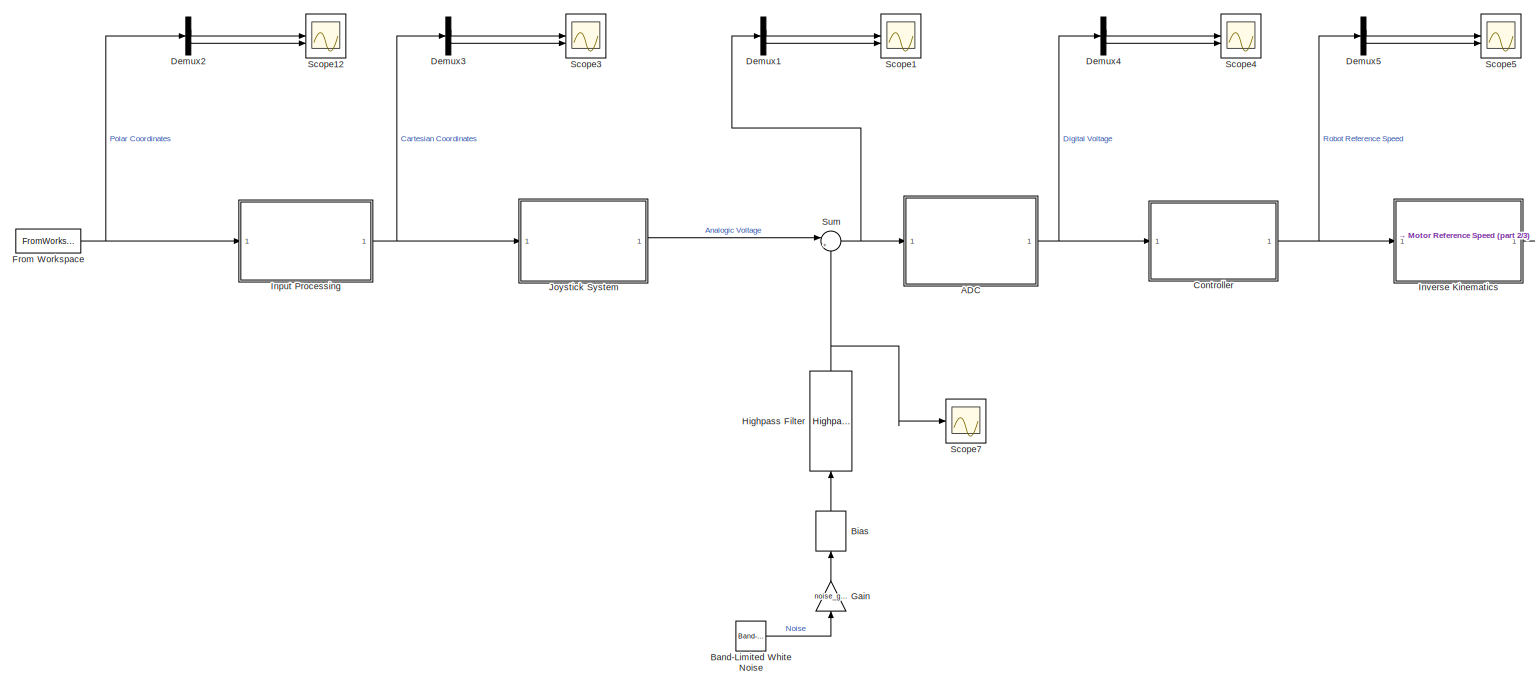
[diagram: root canvas - part 1/3, left side, full height]
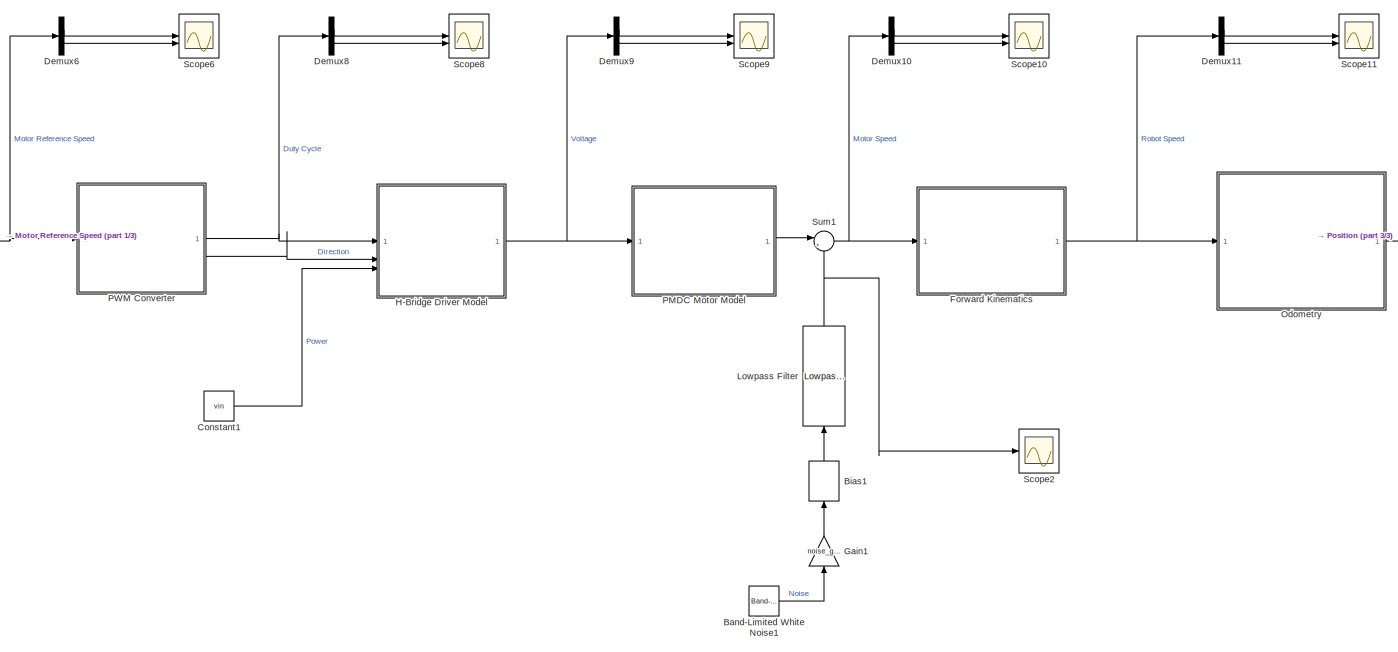
[diagram: root canvas - part 2/3, right side, full height]
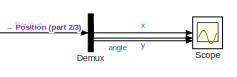
[diagram: root canvas - part 3/3, middle right region]
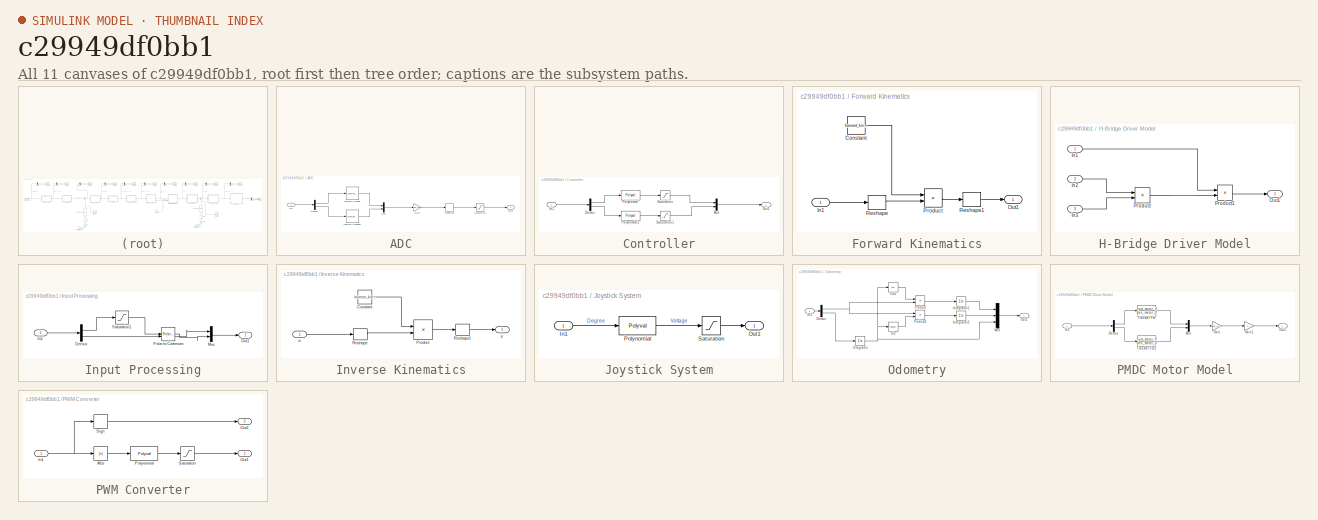
[diagram: thumbnail index - all 11 canvases of the model, root first then tree order]
MODEL slx_c29949df0bb1
KIND model
CONFIG AbsTol = auto
CONFIG EnableMultiTasking = off
CONFIG FixedStep = auto
CONFIG MaxStep = auto
CONFIG MinStep = auto
CONFIG RelTol = 1e-3
CONFIG SampleTimeConstraint = Unconstrained
CONFIG SolverName = VariableStepAuto
CONFIG StartTime = 0.0
CONFIG StopTime = 1
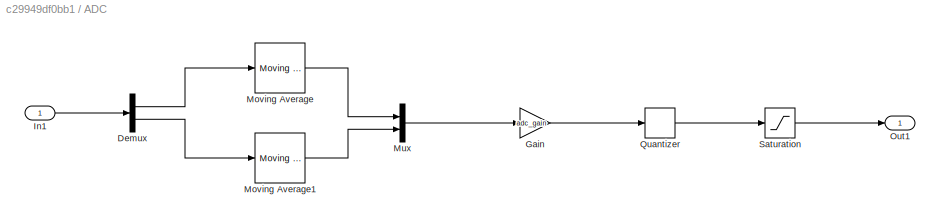
BLOCK [SubSystem] ADC
BLOCK [Demux] ADC/Demux
  Outputs = 2
BLOCK [Gain] ADC/Gain
  Gain = adc_gain
BLOCK [Inport] ADC/In1
BLOCK [Reference] ADC/Moving Average  REF=dspstat3/Moving
Average
  SourceBlock = dspstat3/Moving\nAverage
  SourceType = dsp.simulink.MovingAverage
BLOCK [Reference] ADC/Moving Average1  REF=dspstat3/Moving
Average
  SourceBlock = dspstat3/Moving\nAverage
  SourceType = dsp.simulink.MovingAverage
BLOCK [Mux] ADC/Mux
  DisplayOption = bar
  Inputs = 2
BLOCK [Outport] ADC/Out1
BLOCK [Quantizer] ADC/Quantizer
BLOCK [Saturate] ADC/Saturation
  LowerLimit = lim_adc(1)
  UpperLimit = lim_adc(2)
  ZeroCross = off
BLOCK [Reference] Band-Limited White Noise  REF=simulink/Sources/Band-Limited
White Noise
  SourceBlock = simulink/Sources/Band-Limited\nWhite Noise
  SourceType = Band-Limited White Noise.
BLOCK [Reference] Band-Limited White Noise1  REF=simulink/Sources/Band-Limited
White Noise
  SourceBlock = simulink/Sources/Band-Limited\nWhite Noise
  SourceType = Band-Limited White Noise.
BLOCK [Bias] Bias
  Bias = noise_bias
  NameLocation = right
  SaturateOnIntegerOverflow = off
BLOCK [Bias] Bias1
  Bias = noise_bias_2
  NameLocation = right
  SaturateOnIntegerOverflow = off
BLOCK [Constant] Constant1
  Value = vin
BLOCK [SubSystem] Controller
BLOCK [Demux] Controller/Demux
  Outputs = 2
BLOCK [Inport] Controller/In1
BLOCK [Mux] Controller/Mux
  DisplayOption = bar
  Inputs = 2
BLOCK [Outport] Controller/Out1
BLOCK [Polyval] Controller/Polynomial
  Coefs = c2
BLOCK [Polyval] Controller/Polynomial1
  Coefs = c3
BLOCK [Saturate] Controller/Saturation
  LowerLimit = lim_robot_speed(1)
  UpperLimit = lim_robot_speed(2)
BLOCK [Saturate] Controller/Saturation1
  LowerLimit = lim_robot_angular_velocity(1)
  UpperLimit = lim_robot_angular_velocity(2)
BLOCK [Demux] Demux
  Outputs = 3
BLOCK [Demux] Demux1
  Outputs = 2
BLOCK [Demux] Demux10
  Outputs = 2
BLOCK [Demux] Demux11
  Outputs = 2
BLOCK [Demux] Demux2
  Outputs = 2
BLOCK [Demux] Demux3
  Outputs = 2
BLOCK [Demux] Demux4
  Outputs = 2
BLOCK [Demux] Demux5
  Outputs = 2
BLOCK [Demux] Demux6
  Outputs = 2
BLOCK [Demux] Demux8
  Outputs = 2
BLOCK [Demux] Demux9
  Outputs = 2
BLOCK [SubSystem] Forward Kinematics
BLOCK [Constant] Forward Kinematics/Constant
  Value = forward_kinematics
BLOCK [Inport] Forward Kinematics/In1
BLOCK [Outport] Forward Kinematics/Out1
BLOCK [Product] Forward Kinematics/Product
  Multiplication = Matrix(*)
BLOCK [Reshape] Forward Kinematics/Reshape
  OutputDimensionality = Column vector (2-D)
BLOCK [Reshape] Forward Kinematics/Reshape1
BLOCK [FromWorkspace] From Workspace
  OutputAfterFinalValue = Holding final value
  VariableName = simin
BLOCK [Gain] Gain
  Gain = noise_gain
  NameLocation = right
BLOCK [Gain] Gain1
  Gain = noise_gain_2
  NameLocation = right
BLOCK [SubSystem] H-Bridge Driver Model
BLOCK [Inport] H-Bridge Driver Model/In1
BLOCK [Inport] H-Bridge Driver Model/In2
  Port = 2
BLOCK [Inport] H-Bridge Driver Model/In3
  Port = 3
BLOCK [Outport] H-Bridge Driver Model/Out1
BLOCK [Product] H-Bridge Driver Model/Product
BLOCK [Product] H-Bridge Driver Model/Product1
BLOCK [Reference] Highpass Filter  REF=dspfdesign/Highpass Filter
  NameLocation = right
  SourceBlock = dspfdesign/Highpass Filter
  SourceType = dsp.simulink.HighpassFilter
BLOCK [SubSystem] Input Processing
BLOCK [Demux] Input Processing/Demux
  Outputs = 2
BLOCK [Inport] Input Processing/In1
BLOCK [Mux] Input Processing/Mux
  DisplayOption = bar
  Inputs = 2
BLOCK [Outport] Input Processing/Out1
BLOCK [Reference] Input Processing/Polar to Cartesian  REF=simulink_extras/Transformations/Polar to
Cartesian
  SourceBlock = simulink_extras/Transformations/Polar to\nCartesian
  SourceType = Polar2Cart
BLOCK [Saturate] Input Processing/Saturation1
  LowerLimit = 0
  UpperLimit = 1
BLOCK [SubSystem] Inverse Kinematics
BLOCK [Constant] Inverse Kinematics/Constant
  Value = inverse_kinematics
BLOCK [Product] Inverse Kinematics/Product
  Multiplication = Matrix(*)
BLOCK [Reshape] Inverse Kinematics/Reshape
  OutputDimensionality = Column vector (2-D)
BLOCK [Reshape] Inverse Kinematics/Reshape1
BLOCK [Inport] Inverse Kinematics/a
BLOCK [Outport] Inverse Kinematics/y
BLOCK [SubSystem] Joystick System
BLOCK [Inport] Joystick System/In1
BLOCK [Outport] Joystick System/Out1
BLOCK [Polyval] Joystick System/Polynomial
  Coefs = c1
BLOCK [Saturate] Joystick System/Saturation
  LowerLimit = lim_voltage(1)
  UpperLimit = lim_voltage(2)
  ZeroCross = off
BLOCK [Reference] Lowpass Filter  REF=dspfdesign/Lowpass Filter
  NameLocation = right
  SourceBlock = dspfdesign/Lowpass Filter
  SourceType = dsp.simulink.LowpassFilter
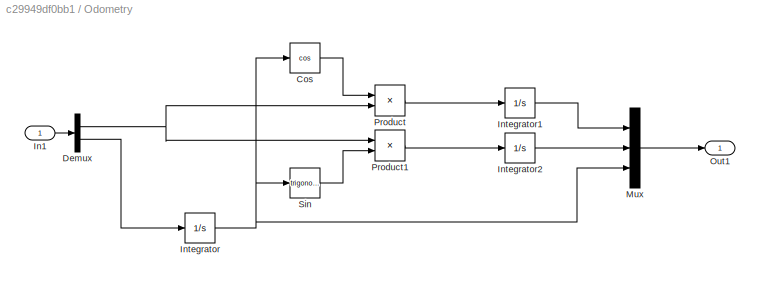
BLOCK [SubSystem] Odometry
BLOCK [Trigonometry] Odometry/Cos
  Operator = cos
BLOCK [Demux] Odometry/Demux
  Outputs = 2
BLOCK [Inport] Odometry/In1
BLOCK [Integrator] Odometry/Integrator
BLOCK [Integrator] Odometry/Integrator1
BLOCK [Integrator] Odometry/Integrator2
BLOCK [Mux] Odometry/Mux
  DisplayOption = bar
  Inputs = 3
BLOCK [Outport] Odometry/Out1
BLOCK [Product] Odometry/Product
BLOCK [Product] Odometry/Product1
BLOCK [Trigonometry] Odometry/Sin
BLOCK [SubSystem] PMDC Motor Model
BLOCK [Demux] PMDC Motor Model/Demux
  Outputs = 2
BLOCK [Gain] PMDC Motor Model/Gain
  Gain = gear_ratio
BLOCK [Gain] PMDC Motor Model/Gain1
  Gain = R
BLOCK [Inport] PMDC Motor Model/In1
BLOCK [Mux] PMDC Motor Model/Mux
  DisplayOption = bar
  Inputs = 2
BLOCK [Outport] PMDC Motor Model/Out1
BLOCK [TransferFcn] PMDC Motor Model/Transfer Fcn
  Denominator = den_motor_tf
  Numerator = num_motor_tf
BLOCK [TransferFcn] PMDC Motor Model/Transfer Fcn1
  Denominator = den_motor_tf
  Numerator = num_motor_tf
BLOCK [SubSystem] PWM Converter
BLOCK [Abs] PWM Converter/Abs
  SaturateOnIntegerOverflow = off
  ZeroCross = off
BLOCK [Inport] PWM Converter/In1
BLOCK [Outport] PWM Converter/Out1
BLOCK [Outport] PWM Converter/Out2
  Port = 2
BLOCK [Polyval] PWM Converter/Polynomial
  Coefs = c4
BLOCK [Saturate] PWM Converter/Saturation
  LowerLimit = lim_pwm(1)
  UpperLimit = lim_pwm(2)
  ZeroCross = off
BLOCK [Signum] PWM Converter/Sign
  ZeroCross = off
BLOCK [Scope] Scope
  ActiveDisplayYMaximum = 0.34315381688886831
  ActiveDisplayYMinimum = -0.038312008816217151
  ContainerLayout = {"WindowBounds":[808,1363,1278,765]}
  DataLogging = on
  DataLoggingSaveFormat = Structure
  DataLoggingVariableName = odometry
  Floating = off
  GraphicalSettings = {"Style":{"BackgroundColor":[0.12941176470588237,0.12941176470588237,0.12941176470588237],"AxesColor":[0.07058823529411765,0.07058823529411765,0.07058823529411765],"LabelsColor":[0.8509803921568627,0.8509803921568627,0.8509803921568627],"PreserveColors":false,"Visible":[true,true,true],"LineStyle":["-","-","-"],"LineWidth":[1.5,1.5,1.5],"BarWidth":[0.9,0.9,0.9],"LineColor":["auto","auto","auto"],"...<+2203ch>
  MultipleDisplayCache = [{"MaxYLimMag":0.34315381688886831,"MaxYLimReal":0.34315381688886831,"MinYLimMag":0,"MinYLimReal":-0.038312008816217151,"PlotAsMagnitudePhase":false,"ShowGrid":true,"ShowLegend":false,"Title":"%<SignalLabel>","YLabel":""}]
  NumInputPorts = 3
  Visible = on
  WasSavedAsWebScope = on
  WindowPosition = [763.000000,50.000000,1066.000000,761.000000,]
BLOCK [Scope] Scope1
  ActiveDisplayYMaximum = 5.7930389193730329
  ActiveDisplayYMinimum = 1.060489809937327
  ContainerLayout = {"WindowBounds":[808,1363,1278,765]}
  DataLogging = on
  DataLoggingSaveFormat = Structure
  DataLoggingVariableName = joystick_analogic_voltage
  Floating = off
  GraphicalSettings = {"Style":{"BackgroundColor":[0.12941176470588237,0.12941176470588237,0.12941176470588237],"AxesColor":[0.07058823529411765,0.07058823529411765,0.07058823529411765],"LabelsColor":[0.8509803921568627,0.8509803921568627,0.8509803921568627],"PreserveColors":false,"Visible":[true,true],"LineStyle":["-","-"],"LineWidth":[1.5,1.5],"BarWidth":[0.9,0.9],"LineColor":["auto","auto"],"LineFaceAlpha":[1,1],"Li...<+2109ch>
  MultipleDisplayCache = [{"MaxYLimMag":5.7930389193730329,"MaxYLimReal":5.7930389193730329,"MinYLimMag":1.060489809937327,"MinYLimReal":1.060489809937327,"PlotAsMagnitudePhase":false,"ShowGrid":true,"ShowLegend":false,"Title":"%<SignalLabel>","YLabel":""}]
  NumInputPorts = 2
  Visible = on
  WasSavedAsWebScope = on
  WindowPosition = [763.000000,50.000000,1066.000000,761.000000,]
BLOCK [Scope] Scope10
  ActiveDisplayYMaximum = 0.57575148791845487
  ActiveDisplayYMinimum = -0.22999768707174573
  ContainerLayout = {"WindowBounds":[808,1363,1278,765]}
  DataLogging = on
  DataLoggingSaveFormat = Structure
  DataLoggingVariableName = motor_speed_rbv
  Floating = off
  GraphicalSettings = {"AxesScalingProperties":{"AlignXAxis":"Center","AlignYAxis":"Center","AutoScaleXAxisLimits":false,"AxesScaling":"Manual","AxesScalingNumUpdates":10,"ExpandOnly":true,"ScaleAxesLimitsAtStop":false,"XAxisDataRange":100,"YAxisDataRange":80},"DisplayProperties":{"ColorOrder":["auto","auto","auto","auto","auto","auto","auto","auto","auto","auto","auto","auto","auto","auto","auto","auto","auto","auto",...<+2114ch>
  MultipleDisplayCache = [{"MaxYLimMag":0.61515579694480316,"MaxYLimReal":0.57575148791845487,"MinYLimMag":0,"MinYLimReal":-0.22999768707174573,"PlotAsMagnitudePhase":false,"ShowGrid":true,"ShowLegend":false,"Title":"%<SignalLabel>","YLabel":""}]
  NumInputPorts = 2
  Visible = on
  WasSavedAsWebScope = on
  WindowPosition = [763.000000,50.000000,1066.000000,761.000000,]
BLOCK [Scope] Scope11
  ActiveDisplayYMaximum = 0.1239488307824286
  ActiveDisplayYMinimum = -0.016441629327696137
  ContainerLayout = {"WindowBounds":[808,1363,1278,765]}
  DataLogging = on
  DataLoggingSaveFormat = Structure
  DataLoggingVariableName = robot_speed_rbv
  Floating = off
  GraphicalSettings = {"Style":{"BackgroundColor":[0.12941176470588237,0.12941176470588237,0.12941176470588237],"AxesColor":[0.07058823529411765,0.07058823529411765,0.07058823529411765],"LabelsColor":[0.8509803921568627,0.8509803921568627,0.8509803921568627],"PreserveColors":false,"Visible":[true,true],"LineStyle":["-","-"],"LineWidth":[1.5,1.5],"BarWidth":[0.9,0.9],"LineColor":["auto","auto"],"LineFaceAlpha":[1,1],"Li...<+2121ch>
  MultipleDisplayCache = [{"MaxYLimMag":0.1239488307824286,"MaxYLimReal":0.1239488307824286,"MinYLimMag":0,"MinYLimReal":-0.016441629327696137,"PlotAsMagnitudePhase":false,"ShowGrid":true,"ShowLegend":false,"Title":"%<SignalLabel>","YLabel":""}]
  NumInputPorts = 2
  Visible = on
  WasSavedAsWebScope = on
  WindowPosition = [763.000000,50.000000,1066.000000,761.000000,]
BLOCK [Scope] Scope12
  ActiveDisplayYMaximum = 1.1577249234748936
  ActiveDisplayYMinimum = -0.4195243112740431
  ContainerLayout = {"WindowBounds":[808,1363,1278,765]}
  DataLogging = on
  DataLoggingSaveFormat = Structure
  DataLoggingVariableName = input
  Floating = off
  GraphicalSettings = {"Style":{"BackgroundColor":[0.12941176470588237,0.12941176470588237,0.12941176470588237],"AxesColor":[0.07058823529411765,0.07058823529411765,0.07058823529411765],"LabelsColor":[0.8509803921568627,0.8509803921568627,0.8509803921568627],"PreserveColors":false,"Visible":[true,true],"LineStyle":["-","-"],"LineWidth":[1.5,1.5],"BarWidth":[0.9,0.9],"LineColor":["auto","auto"],"LineFaceAlpha":[1,1],"Li...<+2067ch>
  MultipleDisplayCache = [{"MaxYLimMag":1.1577249234748936,"MaxYLimReal":1.1577249234748936,"MinYLimMag":0,"MinYLimReal":-0.4195243112740431,"PlotAsMagnitudePhase":false,"ShowGrid":true,"ShowLegend":false,"Title":"%<SignalLabel>","YLabel":""}]
  NumInputPorts = 2
  Visible = on
  WasSavedAsWebScope = on
  WindowPosition = [763.000000,50.000000,1066.000000,761.000000,]
BLOCK [Scope] Scope2
  ActiveDisplayYMaximum = 0.11012899050092259
  ActiveDisplayYMinimum = -0.30863024342846962
  ContainerLayout = {"WindowBounds":[808,1363,1278,765]}
  DataLoggingSaveFormat = Structure
  DataLoggingVariableName = motor_speed_rbv1
  Floating = off
  GraphicalSettings = {"Style":{"BackgroundColor":[0.12941176470588237,0.12941176470588237,0.12941176470588237],"AxesColor":[0.07058823529411765,0.07058823529411765,0.07058823529411765],"LabelsColor":[0.8509803921568627,0.8509803921568627,0.8509803921568627],"PreserveColors":false,"Visible":[true],"LineStyle":["-"],"LineWidth":[1.5],"BarWidth":[0.9],"LineColor":["auto"],"LineFaceAlpha":[1],"LineEdgeAlpha":[1],"Marker":...<+2019ch>
  MultipleDisplayCache = [{"MaxYLimMag":0.017659249148088214,"MaxYLimReal":0.11012899050092259,"MinYLimMag":0,"MinYLimReal":-0.30863024342846962,"PlotAsMagnitudePhase":false,"ShowGrid":true,"ShowLegend":false,"Title":"%<SignalLabel>","YLabel":""}]
  NumInputPorts = 1
  Visible = on
  WasSavedAsWebScope = on
  WindowPosition = [763.000000,50.000000,1066.000000,761.000000,]
BLOCK [Scope] Scope3
  ActiveDisplayYMaximum = 1.1330880951594537
  ActiveDisplayYMinimum = -0.19779285643508393
  ContainerLayout = {"WindowBounds":[808,1363,1278,765]}
  DataLogging = on
  DataLoggingSaveFormat = Structure
  DataLoggingVariableName = joystick_inp
  Floating = off
  GraphicalSettings = {"Style":{"BackgroundColor":[0.12941176470588237,0.12941176470588237,0.12941176470588237],"AxesColor":[0.07058823529411765,0.07058823529411765,0.07058823529411765],"LabelsColor":[0.8509803921568627,0.8509803921568627,0.8509803921568627],"PreserveColors":false,"Visible":[true,true],"LineStyle":["-","-"],"LineWidth":[1.5,1.5],"BarWidth":[0.9,0.9],"LineColor":["auto","auto"],"LineFaceAlpha":[1,1],"Li...<+2939ch>
  LayoutDimensionsString = [2 1]
  MultipleDisplayCache = [{"MaxYLimMag":1.1330880951594537,"MaxYLimReal":1.1330880951594537,"MinYLimMag":0,"MinYLimReal":-0.19779285643508393,"PlotAsMagnitudePhase":false,"ShowGrid":true,"ShowLegend":false,"Title":"%<SignalLabel>","YLabel":""},{"MaxYLimMag":1.1330880951594537,"MaxYLimReal":1.1330880951594537,"MinYLimMag":0,"MinYLimReal":-0.19779285643508393,"PlotAsMagnitudePhase":false,"ShowGrid":true,"ShowLegend":false,"...<+37ch>
  NumInputPorts = 2
  Visible = on
  WasSavedAsWebScope = on
  WindowPosition = [763.000000,50.000000,1066.000000,761.000000,]
BLOCK [Scope] Scope4
  ActiveDisplayYMaximum = 1081.1380282237869
  ActiveDisplayYMinimum = 11.349880751221576
  ContainerLayout = {"WindowBounds":[808,1363,1278,765]}
  DataLogging = on
  DataLoggingSaveFormat = Structure
  DataLoggingVariableName = adc
  Floating = off
  GraphicalSettings = {"Style":{"BackgroundColor":[0.12941176470588237,0.12941176470588237,0.12941176470588237],"AxesColor":[0.07058823529411765,0.07058823529411765,0.07058823529411765],"LabelsColor":[0.8509803921568627,0.8509803921568627,0.8509803921568627],"PreserveColors":false,"Visible":[true,true],"LineStyle":["-","-"],"LineWidth":[1.5,1.5],"BarWidth":[0.9,0.9],"LineColor":["auto","auto"],"LineFaceAlpha":[1,1],"Li...<+2116ch>
  MultipleDisplayCache = [{"MaxYLimMag":992,"MaxYLimReal":1081.1380282237869,"MinYLimMag":32.000000000000028,"MinYLimReal":11.349880751221576,"PlotAsMagnitudePhase":false,"ShowGrid":true,"ShowLegend":false,"Title":"%<SignalLabel>","YLabel":""}]
  NumInputPorts = 2
  Visible = on
  WasSavedAsWebScope = on
  WindowPosition = [763.000000,50.000000,1066.000000,761.000000,]
BLOCK [Scope] Scope5
  ActiveDisplayYMaximum = 0.0752153728208186
  ActiveDisplayYMinimum = 0.074969930142674279
  ContainerLayout = {"WindowBounds":[808,1363,1278,765]}
  DataLogging = on
  DataLoggingSaveFormat = Structure
  DataLoggingVariableName = robot_speed_reference
  Floating = off
  GraphicalSettings = {"Style":{"BackgroundColor":[0.12941176470588237,0.12941176470588237,0.12941176470588237],"AxesColor":[0.07058823529411765,0.07058823529411765,0.07058823529411765],"LabelsColor":[0.8509803921568627,0.8509803921568627,0.8509803921568627],"PreserveColors":false,"Visible":[true,true],"LineStyle":["-","-"],"LineWidth":[1.5,1.5],"BarWidth":[0.9,0.9],"LineColor":["auto","auto"],"LineFaceAlpha":[1,1],"Li...<+2099ch>
  MultipleDisplayCache = [{"MaxYLimMag":0.15278714565004889,"MaxYLimReal":0.0752153728208186,"MinYLimMag":0,"MinYLimReal":0.074969930142674279,"PlotAsMagnitudePhase":false,"ShowGrid":true,"ShowLegend":false,"Title":"%<SignalLabel>","YLabel":""}]
  NumInputPorts = 2
  Visible = on
  WasSavedAsWebScope = on
  WindowPosition = [763.000000,50.000000,1066.000000,761.000000,]
BLOCK [Scope] Scope6
  ActiveDisplayYMaximum = 0.54521612594059543
  ActiveDisplayYMinimum = -0.86358361035381748
  ContainerLayout = {"WindowBounds":[808,1363,1278,765]}
  DataLogging = on
  DataLoggingSaveFormat = Structure
  DataLoggingVariableName = motor_speed_reference
  Floating = off
  GraphicalSettings = {"Style":{"BackgroundColor":[0.12941176470588237,0.12941176470588237,0.12941176470588237],"AxesColor":[0.07058823529411765,0.07058823529411765,0.07058823529411765],"LabelsColor":[0.8509803921568627,0.8509803921568627,0.8509803921568627],"PreserveColors":false,"Visible":[true,true],"LineStyle":["-","-"],"LineWidth":[1.5,1.5],"BarWidth":[0.9,0.9],"LineColor":["auto","auto"],"LineFaceAlpha":[1,1],"Li...<+2102ch>
  MultipleDisplayCache = [{"MaxYLimMag":0.86358361035381748,"MaxYLimReal":0.54521612594059543,"MinYLimMag":0,"MinYLimReal":-0.86358361035381748,"PlotAsMagnitudePhase":false,"ShowGrid":true,"ShowLegend":false,"Title":"%<SignalLabel>","YLabel":""}]
  NumInputPorts = 2
  Visible = on
  WasSavedAsWebScope = on
  WindowPosition = [763.000000,50.000000,1066.000000,761.000000,]
BLOCK [Scope] Scope7
  ActiveDisplayYMaximum = 0.28796558033489961
  ActiveDisplayYMinimum = -0.92976317089904748
  ContainerLayout = {"WindowBounds":[808,1363,1278,765]}
  DataLoggingSaveFormat = Structure
  DataLoggingVariableName = motor_speed_rbv2
  Floating = off
  GraphicalSettings = {"Style":{"BackgroundColor":[0.12941176470588237,0.12941176470588237,0.12941176470588237],"AxesColor":[0.07058823529411765,0.07058823529411765,0.07058823529411765],"LabelsColor":[0.8509803921568627,0.8509803921568627,0.8509803921568627],"PreserveColors":false,"Visible":[true],"LineStyle":["-"],"LineWidth":[1.5],"BarWidth":[0.9],"LineColor":["auto"],"LineFaceAlpha":[1],"LineEdgeAlpha":[1],"Marker":...<+2019ch>
  MultipleDisplayCache = [{"MaxYLimMag":0.017659249148088214,"MaxYLimReal":0.28796558033489961,"MinYLimMag":0,"MinYLimReal":-0.92976317089904748,"PlotAsMagnitudePhase":false,"ShowGrid":true,"ShowLegend":false,"Title":"%<SignalLabel>","YLabel":""}]
  NumInputPorts = 1
  Visible = on
  WasSavedAsWebScope = on
  WindowPosition = [763.000000,50.000000,1066.000000,761.000000,]
BLOCK [Scope] Scope8
  ActiveDisplayYMaximum = 1.125
  ActiveDisplayYMinimum = -0.12499999999999997
  ContainerLayout = {"WindowBounds":[808,1363,1278,765]}
  DataLogging = on
  DataLoggingSaveFormat = Structure
  DataLoggingVariableName = pwm_duty_cycle
  Floating = off
  GraphicalSettings = {"Style":{"BackgroundColor":[0.12941176470588237,0.12941176470588237,0.12941176470588237],"AxesColor":[0.07058823529411765,0.07058823529411765,0.07058823529411765],"LabelsColor":[0.8509803921568627,0.8509803921568627,0.8509803921568627],"PreserveColors":false,"Visible":[true,true],"LineStyle":["-","-"],"LineWidth":[1.5,1.5],"BarWidth":[0.9,0.9],"LineColor":["auto","auto"],"LineFaceAlpha":[1,1],"Li...<+2096ch>
  MultipleDisplayCache = [{"MaxYLimMag":1.125,"MaxYLimReal":1.125,"MinYLimMag":0,"MinYLimReal":-0.12499999999999997,"PlotAsMagnitudePhase":false,"ShowGrid":true,"ShowLegend":false,"Title":"%<SignalLabel>","YLabel":""}]
  NumInputPorts = 2
  Visible = on
  WasSavedAsWebScope = on
  WindowPosition = [763.000000,50.000000,1066.000000,761.000000,]
BLOCK [Scope] Scope9
  ActiveDisplayYMaximum = 25.592375366568909
  ActiveDisplayYMinimum = -29.510263929618766
  ContainerLayout = {"WindowBounds":[808,1363,1278,765]}
  DataLogging = on
  DataLoggingSaveFormat = Structure
  DataLoggingVariableName = h_bridge_voltage
  Floating = off
  GraphicalSettings = {"Style":{"BackgroundColor":[0.12941176470588237,0.12941176470588237,0.12941176470588237],"AxesColor":[0.07058823529411765,0.07058823529411765,0.07058823529411765],"LabelsColor":[0.8509803921568627,0.8509803921568627,0.8509803921568627],"PreserveColors":false,"Visible":[true,true],"LineStyle":["-","-"],"LineWidth":[1.5,1.5],"BarWidth":[0.9,0.9],"LineColor":["auto","auto"],"LineFaceAlpha":[1,1],"Li...<+2092ch>
  MultipleDisplayCache = [{"MaxYLimMag":29.510263929618766,"MaxYLimReal":25.592375366568909,"MinYLimMag":0,"MinYLimReal":-29.510263929618766,"PlotAsMagnitudePhase":false,"ShowGrid":true,"ShowLegend":false,"Title":"%<SignalLabel>","YLabel":""}]
  NumInputPorts = 2
  Visible = on
  WasSavedAsWebScope = on
  WindowPosition = [763.000000,50.000000,1066.000000,761.000000,]
BLOCK [Sum] Sum
  Inputs = |++
BLOCK [Sum] Sum1
  Inputs = |++
LINE ADC/Demux:1 -> ADC/Moving Average:1
LINE ADC/Demux:2 -> ADC/Moving Average1:1
LINE ADC/Gain:1 -> ADC/Quantizer:1
LINE ADC/In1:1 -> ADC/Demux:1
LINE ADC/Moving Average1:1 -> ADC/Mux:2
LINE ADC/Moving Average:1 -> ADC/Mux:1
LINE ADC/Mux:1 -> ADC/Gain:1
LINE ADC/Quantizer:1 -> ADC/Saturation:1
LINE ADC/Saturation:1 -> ADC/Out1:1
NET ADC:1 -> Controller:1, Demux4:1
LINE Band-Limited White Noise1:1 -> Gain1:1
LINE Band-Limited White Noise:1 -> Gain:1
LINE Bias1:1 -> Lowpass Filter:1
LINE Bias:1 -> Highpass Filter:1
LINE Constant1:1 -> H-Bridge Driver Model:3
LINE Controller/Demux:1 -> Controller/Polynomial:1
LINE Controller/Demux:2 -> Controller/Polynomial1:1
LINE Controller/In1:1 -> Controller/Demux:1
LINE Controller/Mux:1 -> Controller/Out1:1
LINE Controller/Polynomial1:1 -> Controller/Saturation1:1
LINE Controller/Polynomial:1 -> Controller/Saturation:1
LINE Controller/Saturation1:1 -> Controller/Mux:2
LINE Controller/Saturation:1 -> Controller/Mux:1
NET Controller:1 -> Demux5:1, Inverse Kinematics:1
LINE Demux10:1 -> Scope10:1
LINE Demux10:2 -> Scope10:2
LINE Demux11:1 -> Scope11:1
LINE Demux11:2 -> Scope11:2
LINE Demux1:1 -> Scope1:1
LINE Demux1:2 -> Scope1:2
LINE Demux2:1 -> Scope12:1
LINE Demux2:2 -> Scope12:2
LINE Demux3:1 -> Scope3:1
LINE Demux3:2 -> Scope3:2
LINE Demux4:1 -> Scope4:1
LINE Demux4:2 -> Scope4:2
LINE Demux5:1 -> Scope5:1
LINE Demux5:2 -> Scope5:2
LINE Demux6:1 -> Scope6:1
LINE Demux6:2 -> Scope6:2
LINE Demux8:1 -> Scope8:1
LINE Demux8:2 -> Scope8:2
LINE Demux9:1 -> Scope9:1
LINE Demux9:2 -> Scope9:2
LINE Demux:1 -> Scope:1
LINE Demux:2 -> Scope:2
LINE Demux:3 -> Scope:3
LINE Forward Kinematics/Constant:1 -> Forward Kinematics/Product:1
LINE Forward Kinematics/In1:1 -> Forward Kinematics/Reshape:1
LINE Forward Kinematics/Product:1 -> Forward Kinematics/Reshape1:1
LINE Forward Kinematics/Reshape1:1 -> Forward Kinematics/Out1:1
LINE Forward Kinematics/Reshape:1 -> Forward Kinematics/Product:2
NET Forward Kinematics:1 -> Demux11:1, Odometry:1
NET From Workspace:1 -> Demux2:1, Input Processing:1
LINE Gain1:1 -> Bias1:1
LINE Gain:1 -> Bias:1
LINE H-Bridge Driver Model/In1:1 -> H-Bridge Driver Model/Product1:1
LINE H-Bridge Driver Model/In2:1 -> H-Bridge Driver Model/Product:1
LINE H-Bridge Driver Model/In3:1 -> H-Bridge Driver Model/Product:2
LINE H-Bridge Driver Model/Product1:1 -> H-Bridge Driver Model/Out1:1
LINE H-Bridge Driver Model/Product:1 -> H-Bridge Driver Model/Product1:2
NET H-Bridge Driver Model:1 -> Demux9:1, PMDC Motor Model:1
NET Highpass Filter:1 -> Scope7:1, Sum:2
LINE Input Processing/Demux:1 -> Input Processing/Saturation1:1
LINE Input Processing/Demux:2 -> Input Processing/Polar to Cartesian:2
LINE Input Processing/In1:1 -> Input Processing/Demux:1
LINE Input Processing/Mux:1 -> Input Processing/Out1:1
LINE Input Processing/Polar to Cartesian:1 -> Input Processing/Mux:2
LINE Input Processing/Polar to Cartesian:2 -> Input Processing/Mux:1
LINE Input Processing/Saturation1:1 -> Input Processing/Polar to Cartesian:1
NET Input Processing:1 -> Demux3:1, Joystick System:1
LINE Inverse Kinematics/Constant:1 -> Inverse Kinematics/Product:1
LINE Inverse Kinematics/Product:1 -> Inverse Kinematics/Reshape1:1
LINE Inverse Kinematics/Reshape1:1 -> Inverse Kinematics/y:1
LINE Inverse Kinematics/Reshape:1 -> Inverse Kinematics/Product:2
LINE Inverse Kinematics/a:1 -> Inverse Kinematics/Reshape:1
NET Inverse Kinematics:1 -> Demux6:1, PWM Converter:1
LINE Joystick System/In1:1 -> Joystick System/Polynomial:1
LINE Joystick System/Polynomial:1 -> Joystick System/Saturation:1
LINE Joystick System/Saturation:1 -> Joystick System/Out1:1
LINE Joystick System:1 -> Sum:1
NET Lowpass Filter:1 -> Scope2:1, Sum1:2
LINE Odometry/Cos:1 -> Odometry/Product:1
NET Odometry/Demux:1 -> Odometry/Product1:1, Odometry/Product:2
LINE Odometry/Demux:2 -> Odometry/Integrator:1
LINE Odometry/In1:1 -> Odometry/Demux:1
LINE Odometry/Integrator1:1 -> Odometry/Mux:1
LINE Odometry/Integrator2:1 -> Odometry/Mux:2
NET Odometry/Integrator:1 -> Odometry/Cos:1, Odometry/Mux:3, Odometry/Sin:1
LINE Odometry/Mux:1 -> Odometry/Out1:1
LINE Odometry/Product1:1 -> Odometry/Integrator2:1
LINE Odometry/Product:1 -> Odometry/Integrator1:1
LINE Odometry/Sin:1 -> Odometry/Product1:2
LINE Odometry:1 -> Demux:1
LINE PMDC Motor Model/Demux:1 -> PMDC Motor Model/Transfer Fcn:1
LINE PMDC Motor Model/Demux:2 -> PMDC Motor Model/Transfer Fcn1:1
LINE PMDC Motor Model/Gain1:1 -> PMDC Motor Model/Out1:1
LINE PMDC Motor Model/Gain:1 -> PMDC Motor Model/Gain1:1
LINE PMDC Motor Model/In1:1 -> PMDC Motor Model/Demux:1
LINE PMDC Motor Model/Mux:1 -> PMDC Motor Model/Gain:1
LINE PMDC Motor Model/Transfer Fcn1:1 -> PMDC Motor Model/Mux:2
LINE PMDC Motor Model/Transfer Fcn:1 -> PMDC Motor Model/Mux:1
LINE PMDC Motor Model:1 -> Sum1:1
LINE PWM Converter/Abs:1 -> PWM Converter/Polynomial:1
NET PWM Converter/In1:1 -> PWM Converter/Abs:1, PWM Converter/Sign:1
LINE PWM Converter/Polynomial:1 -> PWM Converter/Saturation:1
LINE PWM Converter/Saturation:1 -> PWM Converter/Out1:1
LINE PWM Converter/Sign:1 -> PWM Converter/Out2:1
NET PWM Converter:1 -> Demux8:1, H-Bridge Driver Model:1
LINE PWM Converter:2 -> H-Bridge Driver Model:2
NET Sum1:1 -> Demux10:1, Forward Kinematics:1
NET Sum:1 -> ADC:1, Demux1:1
note: NET lines group one-source signal fan-out (src -> all destinations, sorted); 1:1 wires keep LINE
